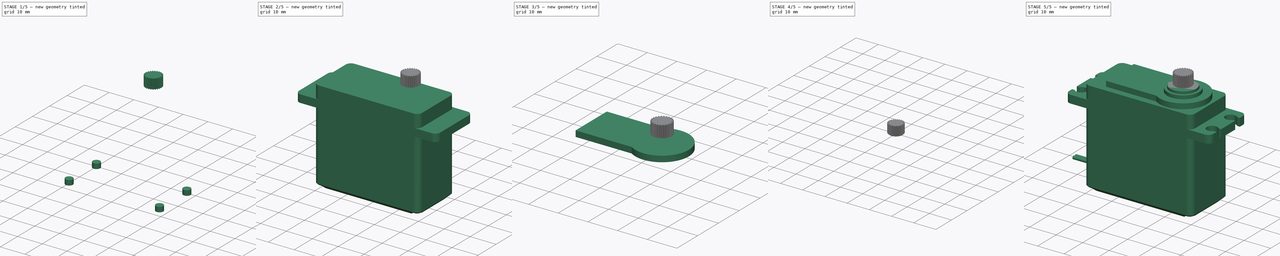
[diagram: build sequence overview — one tinted view per stage of 5, left to right]
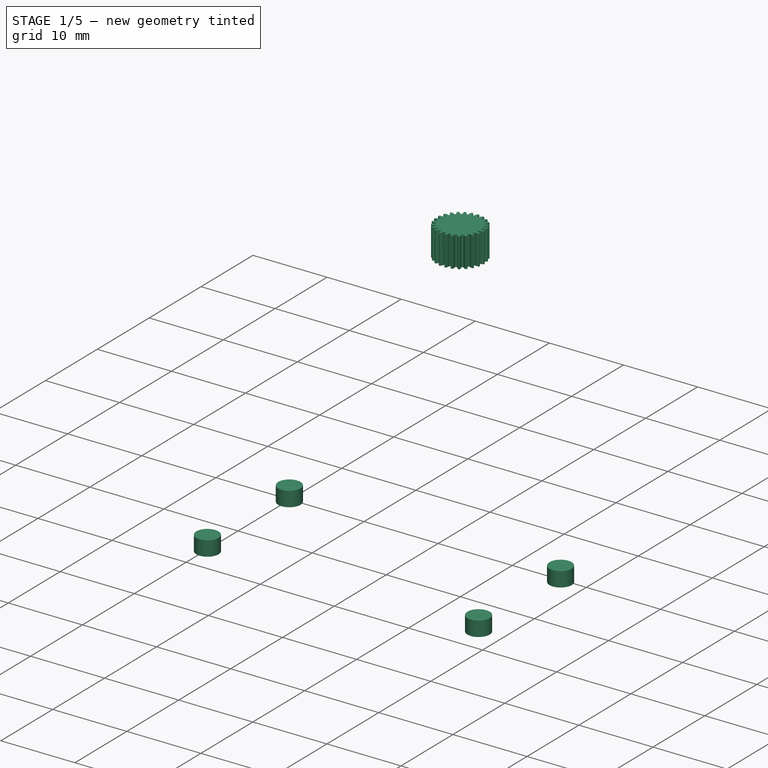
[diagram: stage 1 of 5 — iso view after this stage's code; geometry added in this stage tinted green]
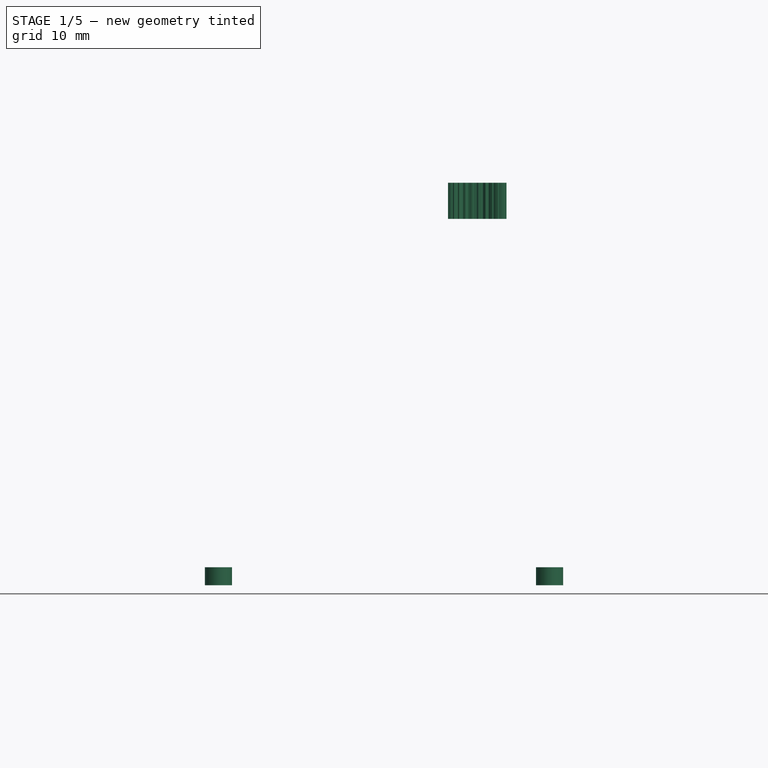
[diagram: stage 1 of 5 — front view after this stage's code; geometry added in this stage tinted green]
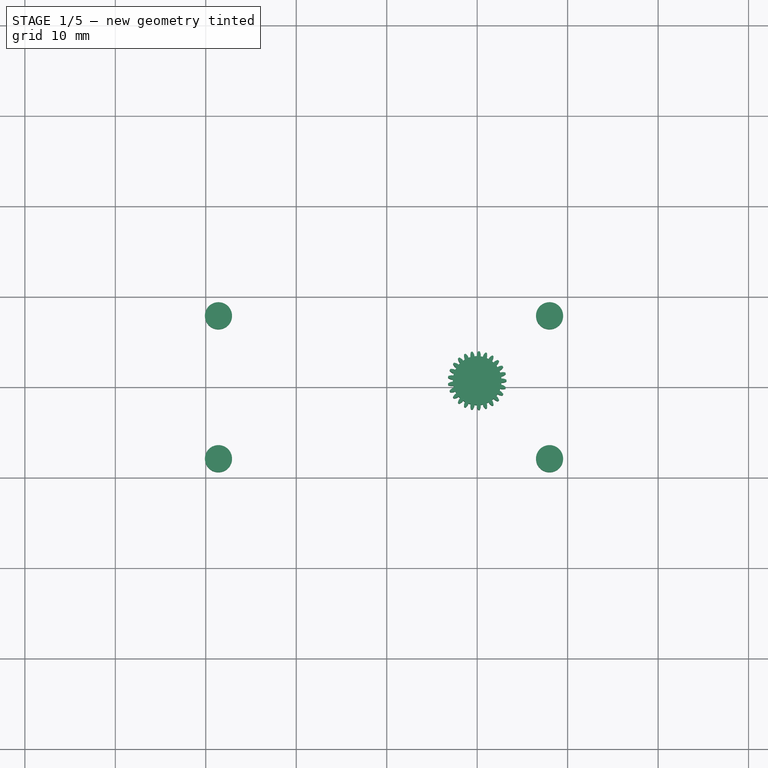
[diagram: stage 1 of 5 — top view after this stage's code; geometry added in this stage tinted green]
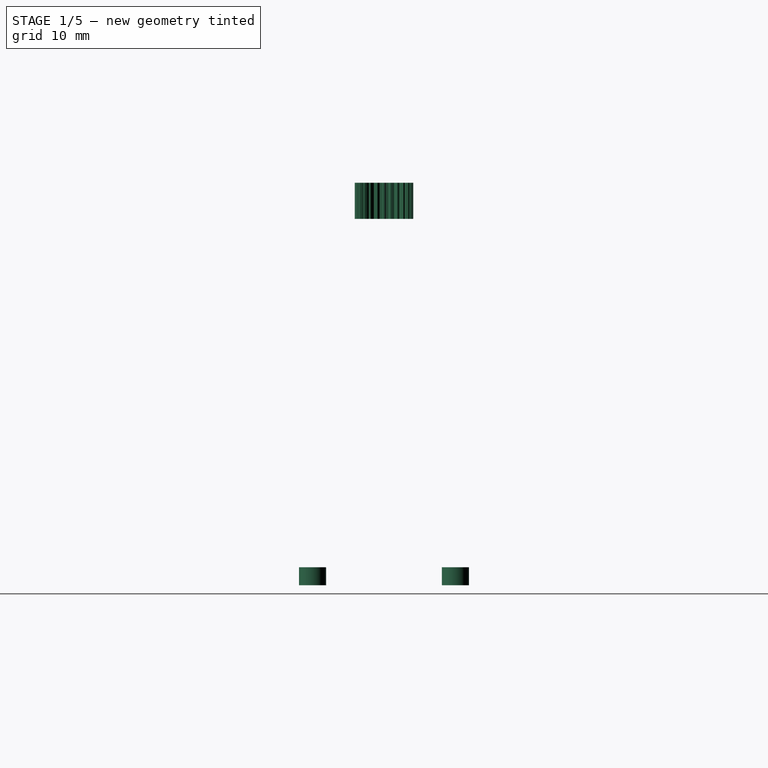
[diagram: stage 1 of 5 — right view after this stage's code; geometry added in this stage tinted green]
FCSTD DOCUMENT  (FreeCAD 0.18R4 (GitTag))
Label: servo
License: All rights reserved
LicenseURL: http://en.wikipedia.org/wiki/All_rights_reserved
objects: Sketcher::SketchObject×13, Part::Extrusion×13, Part::MultiFuse×5, Part::Fillet×3, Part::Cut×3, Part::Chamfer×1, Part::FeaturePython×1, Part::Feature×1
note: 40 computed .brp shape members not serialized (recipe doc carries the construction recipe); baked Part::Feature solids carry a one-line shape summary decoded from their .brp

FEATURE [Sketcher::SketchObject] Sketch
  sketch-geometry (4):
    g0: LineSegment StartX=-30.6 StartY=-9.9 StartZ=0 EndX=10 EndY=-9.9 EndZ=0
    g1: LineSegment StartX=10 StartY=-9.9 StartZ=0 EndX=10 EndY=9.9 EndZ=0
    g2: LineSegment StartX=10 StartY=9.9 StartZ=0 EndX=-30.6 EndY=9.9 EndZ=0
    g3: LineSegment StartX=-30.6 StartY=9.9 StartZ=0 EndX=-30.6 EndY=-9.9 EndZ=0
  constraints (12):
    c: Coincident(g0,g1)
    c: Coincident(g1,g2)
    c: Coincident(g2,g3)
    c: Coincident(g3,g0)
    c: Horizontal(g0)
    c: Horizontal(g2)
    c: Vertical(g1)
    c: Vertical(g3)
    c: DistanceX(g2,g2) = 40.6
    c: DistanceX(g-1,g1) = 10
    c: DistanceY(g1,g1) = 19.8
    c: DistanceY(g-1,g1) = 9.9
FEATURE [Part::Extrusion] Extrude
  Base = -> Sketch
  Dir = (0,0,1)
  DirMode = 2
  FaceMakerClass = Part::FaceMakerBullseye
  LengthFwd = 36
  LengthRev = 0
  Solid = true
  Symmetric = false
FEATURE [Part::Fillet] Fillet
  Base = -> Extrude
  Edges = 4 edges r=2: [Edge1,Edge2,Edge5,Edge8]
FEATURE [Part::Chamfer] Chamfer
  Base = -> Fillet
  Edges = 8 edges r=1.5: [Edge1,Edge5,Edge6,Edge7,Edge8,Edge9,Edge10,Edge11]
FEATURE [Sketcher::SketchObject] Sketch001
  ExternalGeometry = -> [Chamfer]
  MapMode = 5
  Placement = pos=(0,0,0) rot=(1,0,0;3.14159rad)
  Support = -> [Chamfer]
  sketch-geometry (4):
    g0: Circle CenterX=-28.6 CenterY=7.9 CenterZ=0 NormalX=0 NormalY=0 NormalZ=1 AngleXU=0 Radius=1.5
    g1: Circle CenterX=8 CenterY=7.9 CenterZ=0 NormalX=0 NormalY=0 NormalZ=1 AngleXU=0 Radius=1.5
    g2: Circle CenterX=-28.6 CenterY=-7.9 CenterZ=0 NormalX=0 NormalY=0 NormalZ=1 AngleXU=0 Radius=1.5
    g3: Circle CenterX=8 CenterY=-7.9 CenterZ=0 NormalX=0 NormalY=0 NormalZ=1 AngleXU=0 Radius=1.5
  constraints (8):
    c: Coincident(g0,g-3)
    c: Coincident(g-6,g2)
    c: Coincident(g-4,g1)
    c: Coincident(g3,g-5)
    c: Radius(g0) = 1.5
    c: Radius(g2) = 1.5
    c: Radius(g1) = 1.5
    c: Radius(g3) = 1.5
FEATURE [Part::Extrusion] Extrude001
  Base = -> Sketch001
  Dir = (0,0,-1)
  DirMode = 2
  FaceMakerClass = Part::FaceMakerBullseye
  LengthFwd = 2
  LengthRev = 0
  Reversed = true
  Solid = true
  Symmetric = false
FEATURE [Part::FeaturePython] InvoluteGear  # WARN: FeaturePython — macro-defined, semantics opaque (R4)
  Placement = pos=(0,0,40.5) rot=(0,0,1;0rad)
  backlash = 0
  beta = 0
  clearance = 0.25
  double_helix = false
  dw = 6
  head = 0
  height = 4
  module = 0.24
  numpoints = 6
  pressure_angle = 20
  properties_from_tool = true
  reversed_backlash = false
  shift = 0
  simple = false
  teeth = 25
  undercut = false
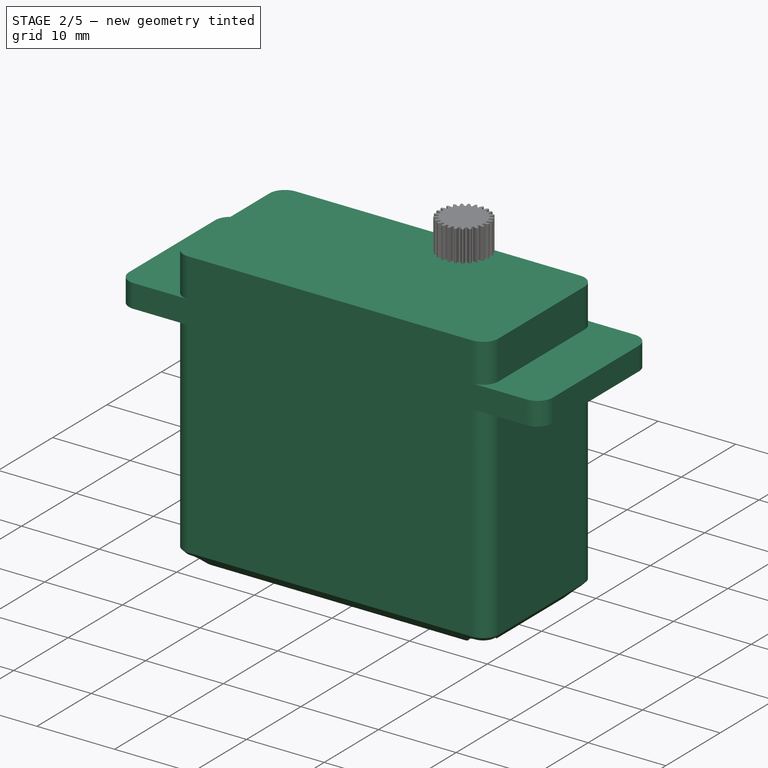
[diagram: stage 2 of 5 — iso view after this stage's code; geometry added in this stage tinted green]
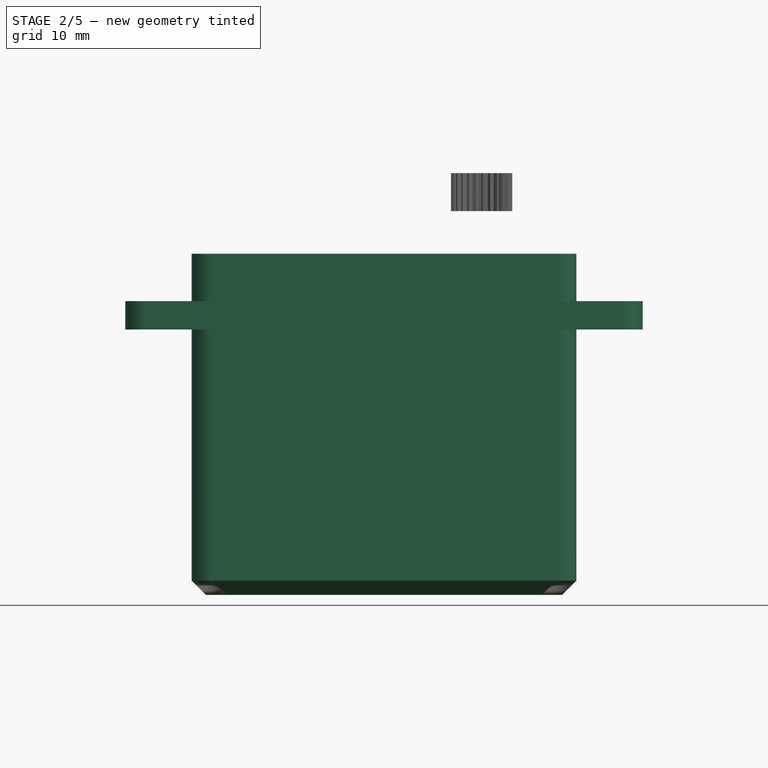
[diagram: stage 2 of 5 — front view after this stage's code; geometry added in this stage tinted green]
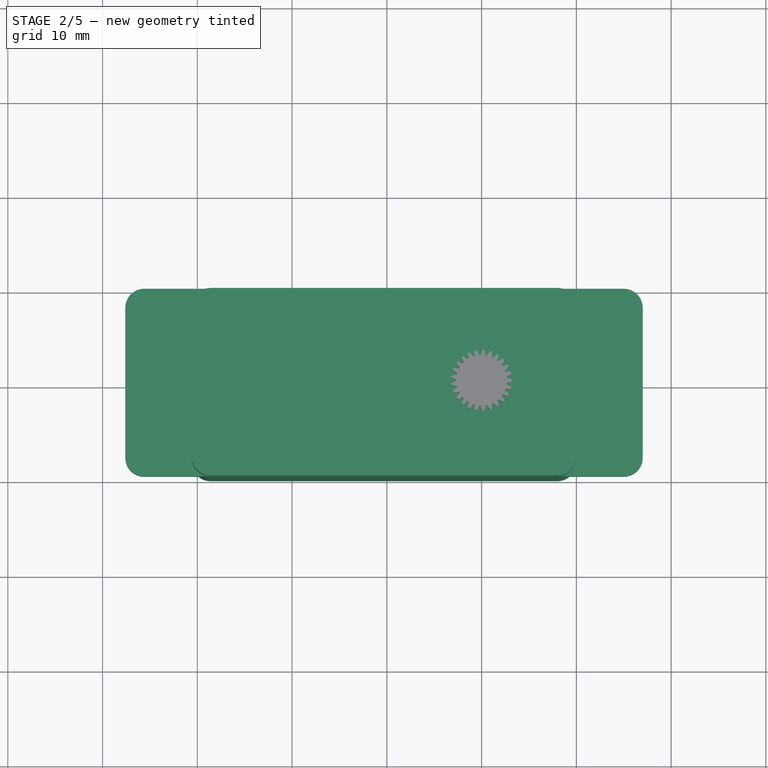
[diagram: stage 2 of 5 — top view after this stage's code; geometry added in this stage tinted green]
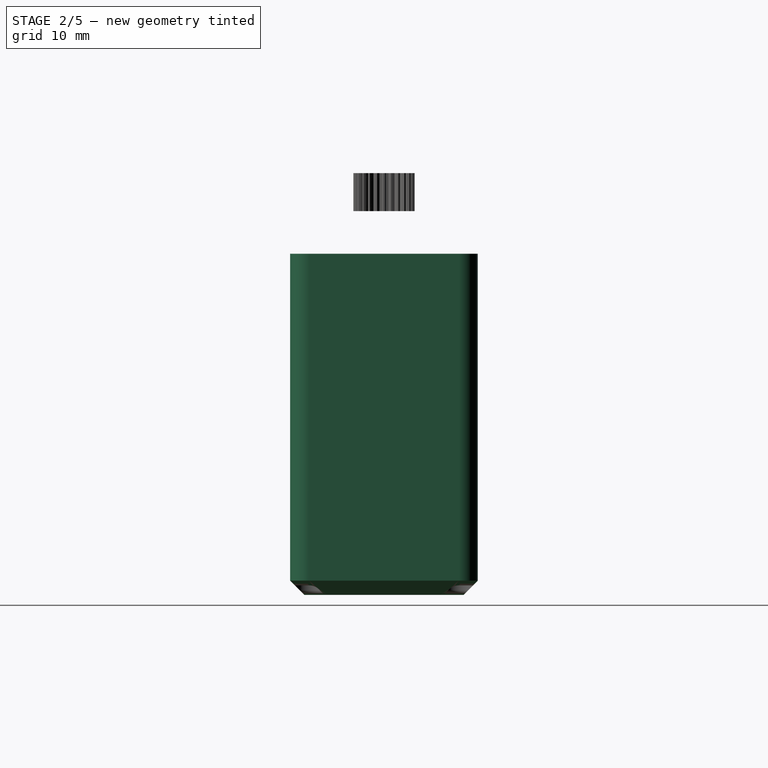
[diagram: stage 2 of 5 — right view after this stage's code; geometry added in this stage tinted green]
FEATURE [Part::Cut] Cut
  Base = -> Chamfer
  Tool = -> Extrude001
FEATURE [Part::Fillet] Fillet001
  Base = -> Cut
  Edges = 4 edges r=0.5: [Edge27,Edge31,Edge34,Edge36]
FEATURE [Sketcher::SketchObject] Sketch002
  ExternalGeometry = -> [Fillet001]
  MapMode = 5
  Placement = pos=(0,-9.9,0) rot=(1,0,0;1.5708rad)
  Support = -> [Fillet001]
  sketch-geometry (4):
    g0: LineSegment StartX=-37.6 StartY=28 StartZ=0 EndX=17 EndY=28 EndZ=0
    g1: LineSegment StartX=17 StartY=28 StartZ=0 EndX=17 EndY=31 EndZ=0
    g2: LineSegment StartX=17 StartY=31 StartZ=0 EndX=-37.6 EndY=31 EndZ=0
    g3: LineSegment StartX=-37.6 StartY=31 StartZ=0 EndX=-37.6 EndY=28 EndZ=0
  constraints (12):
    c: Coincident(g0,g1)
    c: Coincident(g1,g2)
    c: Coincident(g2,g3)
    c: Coincident(g3,g0)
    c: Horizontal(g0)
    c: Horizontal(g2)
    c: Vertical(g1)
    c: Vertical(g3)
    c: DistanceX(g-1,g0) = 17
    c: DistanceX(g0,g-1) = 37.6
    c: DistanceY(g1,g1) = 3
    c: DistanceY(g1,g-3) = 5
FEATURE [Part::Extrusion] Extrude002
  Base = -> Sketch002
  Dir = (0,-1,2e-16)
  DirMode = 2
  FaceMakerClass = Part::FaceMakerBullseye
  LengthFwd = 19.8
  LengthRev = 0
  Reversed = true
  Solid = true
  Symmetric = false
FEATURE [Part::MultiFuse] Fusion
  Shapes = -> [Fillet001,Extrude002]
FEATURE [Part::Fillet] Fillet002
  Base = -> Fusion
  Edges = 4 edges r=2: [Edge9,Edge19,Edge46,Edge95]
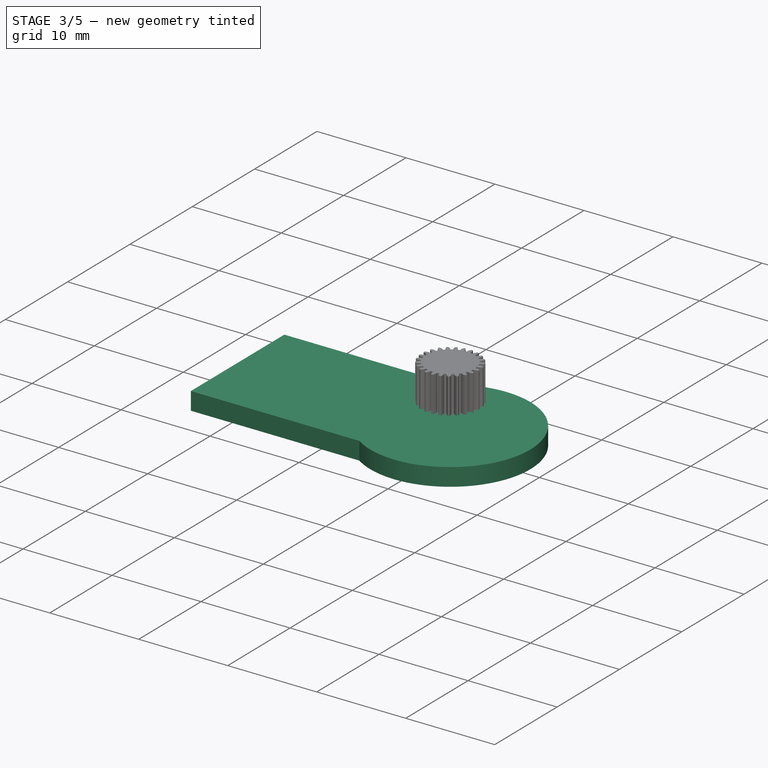
[diagram: stage 3 of 5 — iso view after this stage's code; geometry added in this stage tinted green]
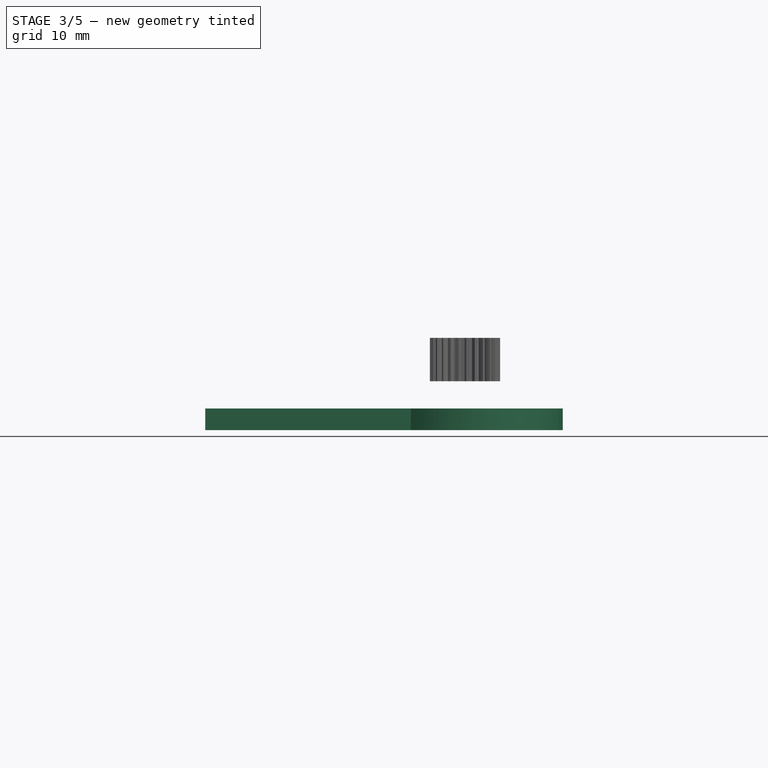
[diagram: stage 3 of 5 — front view after this stage's code; geometry added in this stage tinted green]
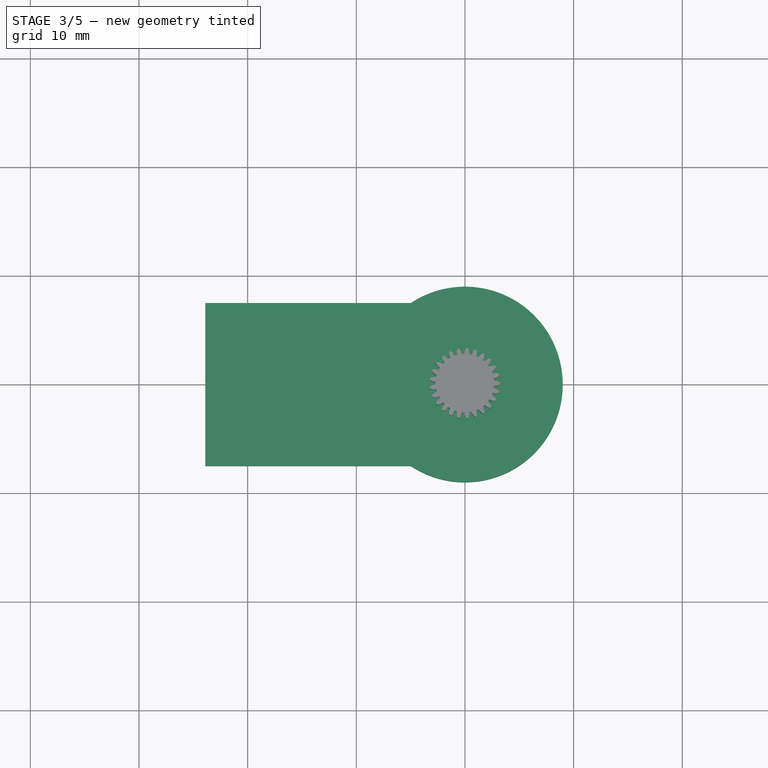
[diagram: stage 3 of 5 — top view after this stage's code; geometry added in this stage tinted green]
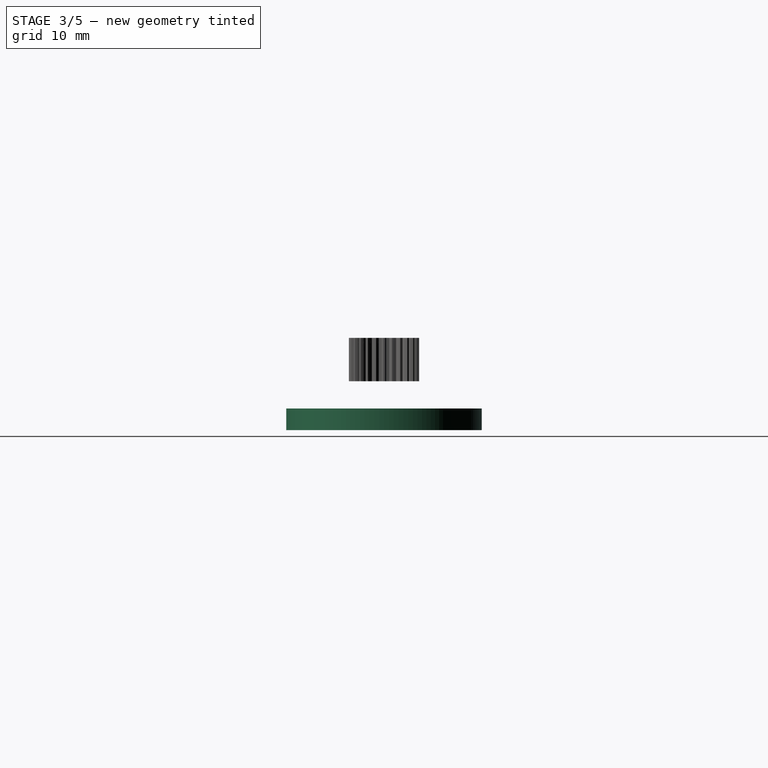
[diagram: stage 3 of 5 — right view after this stage's code; geometry added in this stage tinted green]
FEATURE [Sketcher::SketchObject] Sketch003
  ExternalGeometry = -> [Fillet002]
  MapMode = 5
  Placement = pos=(0,6.8e-15,31) rot=(0,0,1;0rad)
  Support = -> [Fillet002]
  sketch-geometry (8):
    g0: Circle CenterX=-35 CenterY=5 CenterZ=0 NormalX=0 NormalY=0 NormalZ=1 AngleXU=0 Radius=2
    g1: Circle CenterX=-35 CenterY=-5 CenterZ=0 NormalX=0 NormalY=0 NormalZ=1 AngleXU=0 Radius=2
    g2: Circle CenterX=14.4 CenterY=5 CenterZ=0 NormalX=0 NormalY=0 NormalZ=1 AngleXU=0 Radius=2
    g3: Circle CenterX=14.4 CenterY=-5 CenterZ=0 NormalX=0 NormalY=0 NormalZ=1 AngleXU=0 Radius=2
    g4: LineSegment [constr] StartX=-35 StartY=5 StartZ=0 EndX=14.4 EndY=5 EndZ=0
    g5: LineSegment [constr] StartX=14.4 StartY=5 StartZ=0 EndX=14.4 EndY=-5 EndZ=0
    g6: LineSegment [constr] StartX=14.4 StartY=-5 StartZ=0 EndX=-35 EndY=-5 EndZ=0
    g7: LineSegment [constr] StartX=-35 StartY=-5 StartZ=0 EndX=-35 EndY=5 EndZ=0
  constraints (20):
    c: Coincident(g4,g5)
    c: Coincident(g5,g6)
    c: Coincident(g6,g7)
    c: Coincident(g7,g4)
    c: Horizontal(g4)
    c: Horizontal(g6)
    c: Vertical(g5)
    c: Vertical(g7)
    c: DistanceX(g4,g4) = 49.4
    c: DistanceX(g4,g-4) = 2.6
    c: DistanceY(g5,g5) = 10
    c: DistanceY(g5,g-1) = 5
    c: Coincident(g0,g4)
    c: Coincident(g1,g6)
    c: Coincident(g3,g5)
    c: Coincident(g4,g2)
    c: Radius(g0) = 2
    c: Radius(g1) = 2
    c: Radius(g3) = 2
    c: Radius(g2) = 2
FEATURE [Part::Extrusion] Extrude003
  Base = -> Sketch003
  Dir = (0,2e-16,1)
  DirMode = 2
  FaceMakerClass = Part::FaceMakerBullseye
  LengthFwd = 3
  LengthRev = 0
  Reversed = true
  Solid = true
  Symmetric = false
FEATURE [Part::Cut] Cut001
  Base = -> Fillet002
  Tool = -> Extrude003
FEATURE [Sketcher::SketchObject] Sketch004
  ExternalGeometry = -> [Cut001]
  MapMode = 5
  Placement = pos=(0,6.8e-15,31) rot=(0,0,1;0rad)
  Support = -> [Cut001]
  sketch-geometry (16):
    g0: LineSegment StartX=-40 StartY=3.75 StartZ=0 EndX=-35 EndY=3.75 EndZ=0
    g1: LineSegment StartX=-35 StartY=3.75 StartZ=0 EndX=-35 EndY=6.25 EndZ=0
    g2: LineSegment StartX=-35 StartY=6.25 StartZ=0 EndX=-40 EndY=6.25 EndZ=0
    g3: LineSegment StartX=-40 StartY=6.25 StartZ=0 EndX=-40 EndY=3.75 EndZ=0
    g4: LineSegment StartX=14.4 StartY=6.25 StartZ=0 EndX=19.4 EndY=6.25 EndZ=0
    g5: LineSegment StartX=19.4 StartY=6.25 StartZ=0 EndX=19.4 EndY=3.75 EndZ=0
    g6: LineSegment StartX=19.4 StartY=3.75 StartZ=0 EndX=14.4 EndY=3.75 EndZ=0
    g7: LineSegment StartX=14.4 StartY=3.75 StartZ=0 EndX=14.4 EndY=6.25 EndZ=0
    g8: LineSegment StartX=14.4 StartY=-3.75 StartZ=0 EndX=19.4 EndY=-3.75 EndZ=0
    g9: LineSegment StartX=19.4 StartY=-3.75 StartZ=0 EndX=19.4 EndY=-6.25 EndZ=0
    g10: LineSegment StartX=19.4 StartY=-6.25 StartZ=0 EndX=14.4 EndY=-6.25 EndZ=0
    g11: LineSegment StartX=14.4 StartY=-6.25 StartZ=0 EndX=14.4 EndY=-3.75 EndZ=0
    g12: LineSegment StartX=-40 StartY=-3.75 StartZ=0 EndX=-35 EndY=-3.75 EndZ=0
    g13: LineSegment StartX=-35 StartY=-3.75 StartZ=0 EndX=-35 EndY=-6.25 EndZ=0
    g14: LineSegment StartX=-35 StartY=-6.25 StartZ=0 EndX=-40 EndY=-6.25 EndZ=0
    g15: LineSegment StartX=-40 StartY=-6.25 StartZ=0 EndX=-40 EndY=-3.75 EndZ=0
  constraints (48):
    c: Coincident(g0,g1)
    c: Coincident(g1,g2)
    c: Coincident(g2,g3)
    c: Coincident(g3,g0)
    c: Horizontal(g0)
    c: Horizontal(g2)
    c: Vertical(g1)
    c: Vertical(g3)
    c: Coincident(g4,g5)
    c: Coincident(g5,g6)
    c: Coincident(g6,g7)
    c: Coincident(g7,g4)
    c: Horizontal(g4)
    c: Horizontal(g6)
    c: Vertical(g5)
    c: Vertical(g7)
    c: Coincident(g8,g9)
    c: Coincident(g9,g10)
    c: Coincident(g10,g11)
    c: Coincident(g11,g8)
    c: Horizontal(g8)
    c: Horizontal(g10)
    c: Vertical(g9)
    c: Vertical(g11)
    c: Coincident(g12,g13)
    c: Coincident(g13,g14)
    c: Coincident(g14,g15)
    c: Coincident(g15,g12)
    c: Horizontal(g12)
    c: Horizontal(g14)
    c: Vertical(g13)
    c: Vertical(g15)
    c: DistanceY(g1,g1) = 2.5
    c: DistanceY(g7,g7) = 2.5
    c: DistanceY(g11,g11) = 2.5
    c: DistanceY(g13,g13) = 2.5
    c: DistanceY(g-3,g1) = 1.25
    c: DistanceY(g13,g-4) = 1.25
    c: DistanceY(g10,g-6) = 1.25
    c: DistanceY(g-5,g4) = 1.25
    c: DistanceX(g1,g-3) = 0
    c: DistanceX(g-4,g12) = 0
    c: DistanceX(g-6,g8) = 0
    c: DistanceX(g6,g-5) = 0
    c: DistanceX(g2,g2) = 5
    c: DistanceX(g12,g12) = 5
    c: DistanceX(g4,g4) = 5
    c: DistanceX(g8,g8) = 5
FEATURE [Part::Extrusion] Extrude004
  Base = -> Sketch004
  Dir = (0,2e-16,1)
  DirMode = 2
  FaceMakerClass = Part::FaceMakerBullseye
  LengthFwd = 3
  LengthRev = 0
  Reversed = true
  Solid = true
  Symmetric = false
FEATURE [Part::Cut] Cut002
  Base = -> Cut001
  Tool = -> Extrude004
FEATURE [Sketcher::SketchObject] Sketch005
  MapMode = 5
  Placement = pos=(0,0,36) rot=(0,0,1;0rad)
  Support = -> [Cut002]
  sketch-geometry (1):
    g0: Circle CenterX=0 CenterY=0 CenterZ=0 NormalX=0 NormalY=0 NormalZ=1 AngleXU=0 Radius=9
  constraints (2):
    c: Coincident(g-1,g0)
    c: Radius(g0) = 9
FEATURE [Part::Extrusion] Extrude005
  Base = -> Sketch005
  Dir = (0,0,1)
  DirMode = 2
  FaceMakerClass = Part::FaceMakerBullseye
  LengthFwd = 2
  LengthRev = 0
  Solid = true
  Symmetric = false
FEATURE [Sketcher::SketchObject] Sketch006
  ExternalGeometry = -> [Cut002]
  MapMode = 5
  Placement = pos=(0,0,36) rot=(0,0,1;0rad)
  Support = -> [Cut002]
  sketch-geometry (4):
    g0: LineSegment StartX=-23.9 StartY=-7.5 StartZ=0 EndX=0 EndY=-7.5 EndZ=0
    g1: LineSegment StartX=0 StartY=-7.5 StartZ=0 EndX=0 EndY=7.5 EndZ=0
    g2: LineSegment StartX=0 StartY=7.5 StartZ=0 EndX=-23.9 EndY=7.5 EndZ=0
    g3: LineSegment StartX=-23.9 StartY=7.5 StartZ=0 EndX=-23.9 EndY=-7.5 EndZ=0
  constraints (12):
    c: Coincident(g0,g1)
    c: Coincident(g1,g2)
    c: Coincident(g2,g3)
    c: Coincident(g3,g0)
    c: Horizontal(g0)
    c: Horizontal(g2)
    c: Vertical(g1)
    c: Vertical(g3)
    c: DistanceY(g3,g3) = 15
    c: DistanceY(g-1,g1) = 7.5
    c: DistanceX(g-1,g1) = 0
    c: DistanceX(g-3,g2) = 6.7
FEATURE [Part::Extrusion] Extrude006
  Base = -> Sketch006
  Dir = (0,0,1)
  DirMode = 2
  FaceMakerClass = Part::FaceMakerBullseye
  LengthFwd = 2
  LengthRev = 0
  Solid = true
  Symmetric = false
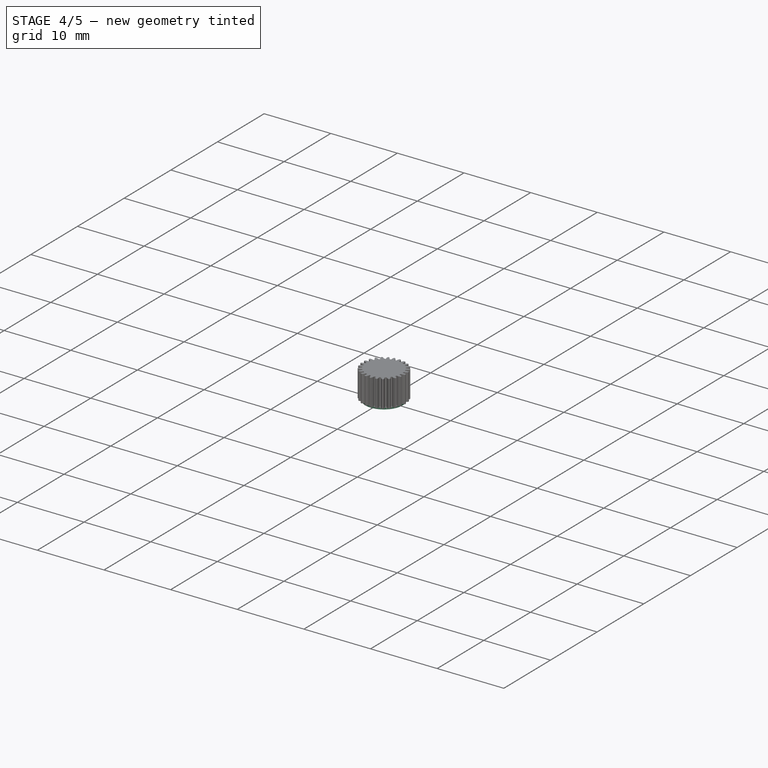
[diagram: stage 4 of 5 — iso view after this stage's code; geometry added in this stage tinted green]
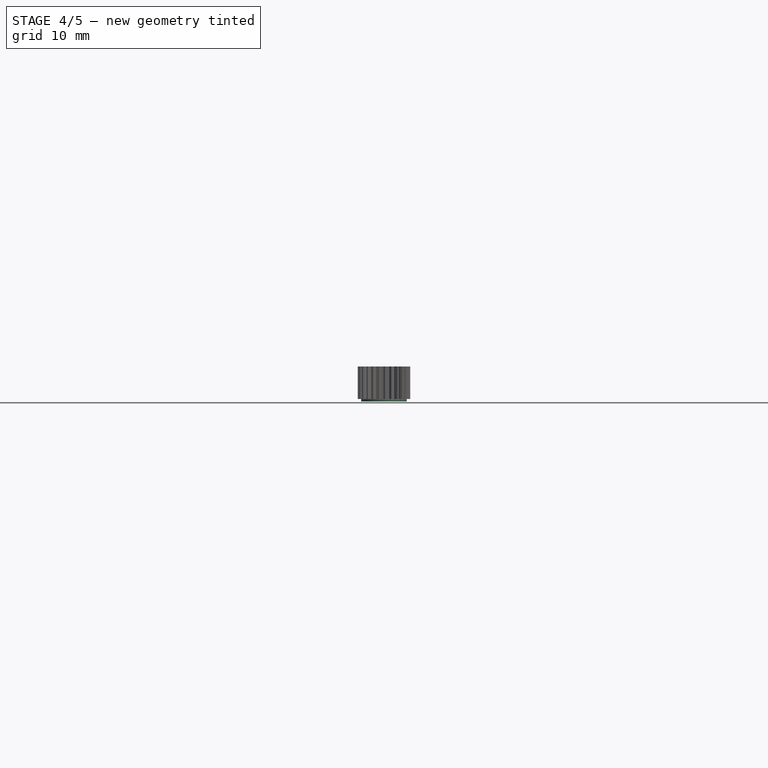
[diagram: stage 4 of 5 — front view after this stage's code; geometry added in this stage tinted green]
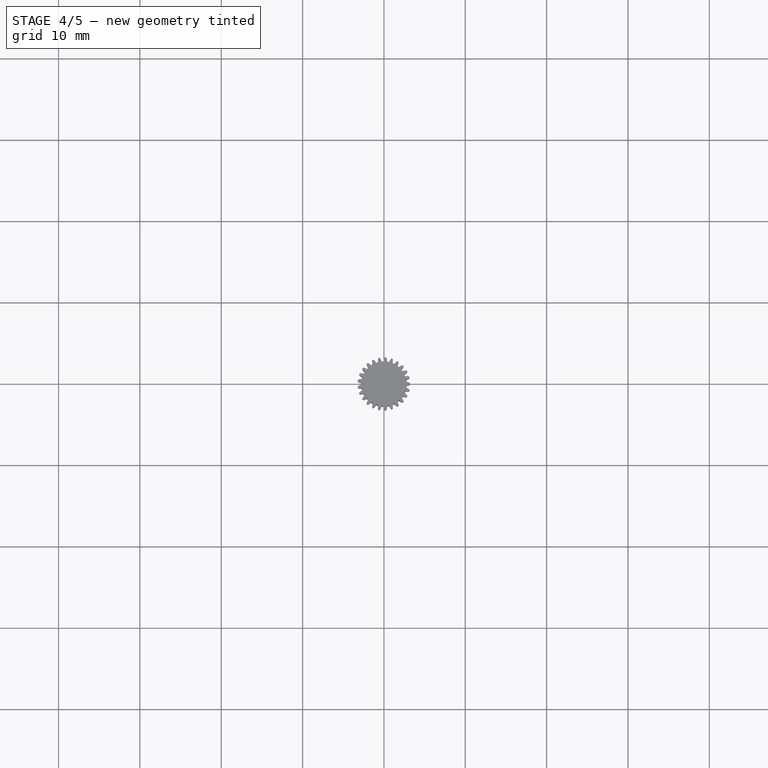
[diagram: stage 4 of 5 — top view after this stage's code; geometry added in this stage tinted green]
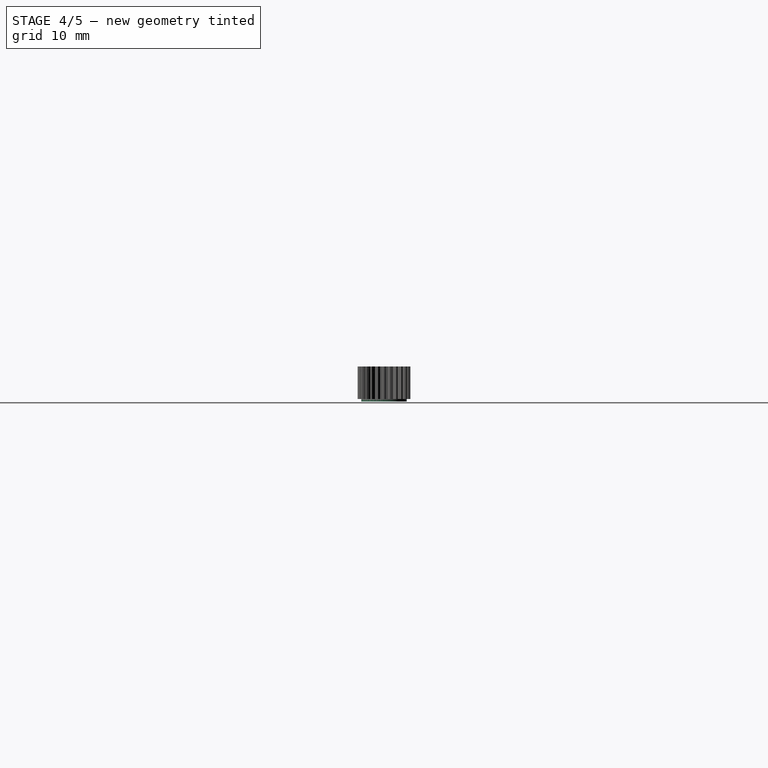
[diagram: stage 4 of 5 — right view after this stage's code; geometry added in this stage tinted green]
FEATURE [Part::MultiFuse] Fusion001
  Shapes = -> [Extrude006,Extrude005]
FEATURE [Part::MultiFuse] Fusion002
  Shapes = -> [Fusion001,Cut002]
FEATURE [Sketcher::SketchObject] Sketch007
  MapMode = 5
  Placement = pos=(0,0,38) rot=(0,0,1;0rad)
  Support = -> [Fusion002]
  sketch-geometry (1):
    g0: Circle CenterX=0 CenterY=0 CenterZ=0 NormalX=0 NormalY=0 NormalZ=1 AngleXU=0 Radius=6
  constraints (2):
    c: Coincident(g0,g-1)
    c: Radius(g0) = 6
FEATURE [Part::Extrusion] Extrude007
  Base = -> Sketch007
  Dir = (0,0,1)
  DirMode = 2
  FaceMakerClass = Part::FaceMakerBullseye
  LengthFwd = 1.3
  LengthRev = 0
  Solid = true
  Symmetric = false
FEATURE [Sketcher::SketchObject] Sketch008
  MapMode = 5
  Placement = pos=(0,0,39.3) rot=(0,0,1;0rad)
  Support = -> [Extrude007]
  sketch-geometry (1):
    g0: Circle CenterX=0 CenterY=0 CenterZ=0 NormalX=0 NormalY=0 NormalZ=1 AngleXU=0 Radius=5
  constraints (2):
    c: Coincident(g0,g-1)
    c: Radius(g0) = 5
FEATURE [Part::Extrusion] Extrude008
  Base = -> Sketch008
  Dir = (0,0,1)
  DirMode = 2
  FaceMakerClass = Part::FaceMakerBullseye
  LengthFwd = 0.9
  LengthRev = 0
  Solid = true
  Symmetric = false
FEATURE [Sketcher::SketchObject] Sketch009
  MapMode = 5
  Placement = pos=(0,0,40.2) rot=(0,0,1;0rad)
  Support = -> [Extrude008]
  sketch-geometry (1):
    g0: Circle CenterX=0 CenterY=0 CenterZ=0 NormalX=0 NormalY=0 NormalZ=1 AngleXU=0 Radius=2.8
  constraints (2):
    c: Coincident(g0,g-1)
    c: Radius(g0) = 2.8
FEATURE [Part::Extrusion] Extrude009
  Base = -> Sketch009
  Dir = (0,0,1)
  DirMode = 2
  FaceMakerClass = Part::FaceMakerBullseye
  LengthFwd = 0.3
  LengthRev = 0
  Solid = true
  Symmetric = false
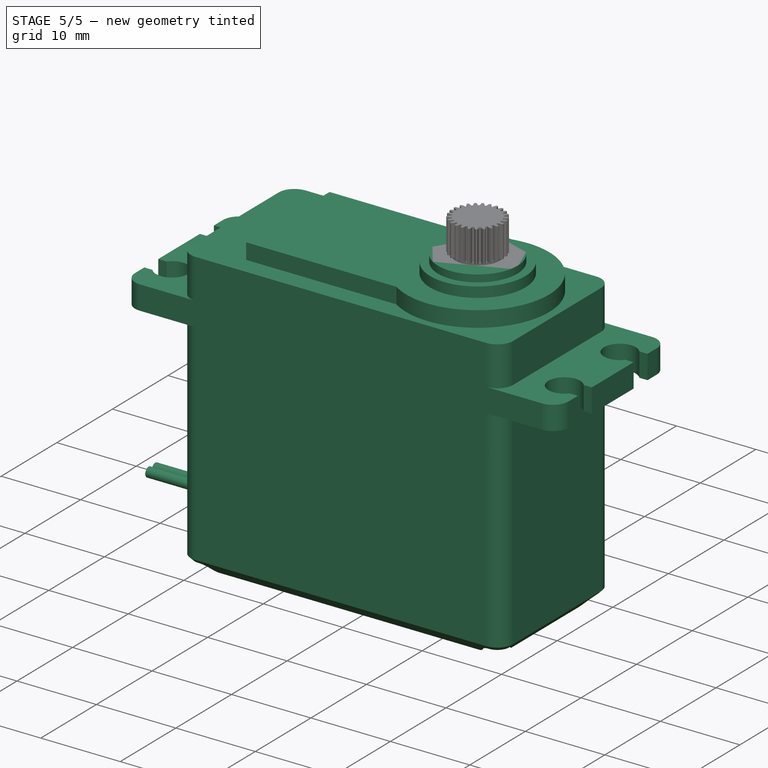
[diagram: stage 5 of 5 — iso view after this stage's code; geometry added in this stage tinted green]
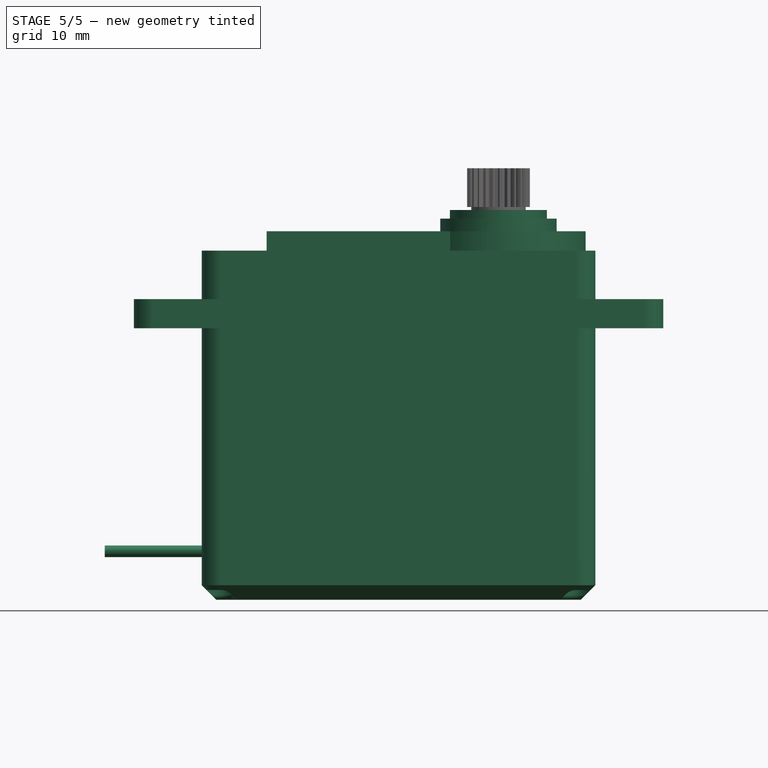
[diagram: stage 5 of 5 — front view after this stage's code; geometry added in this stage tinted green]
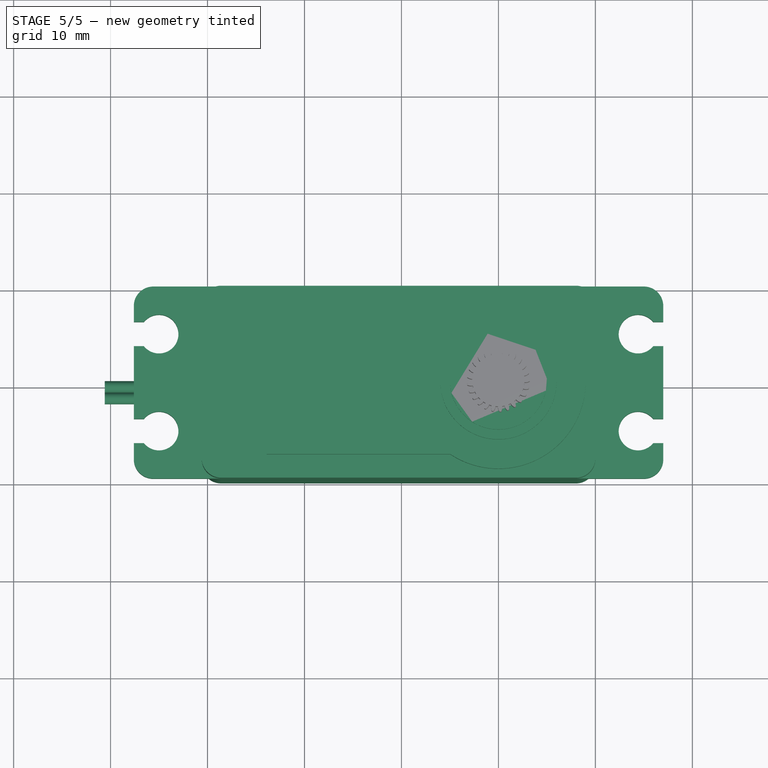
[diagram: stage 5 of 5 — top view after this stage's code; geometry added in this stage tinted green]
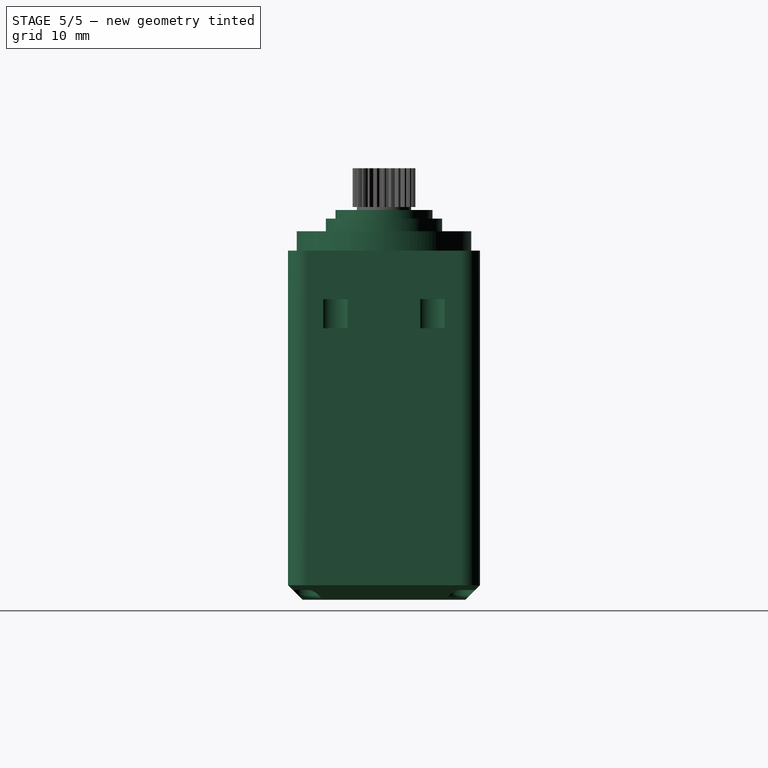
[diagram: stage 5 of 5 — right view after this stage's code; geometry added in this stage tinted green]
FEATURE [Sketcher::SketchObject] Sketch010
  MapMode = 5
  Placement = pos=(-30.6,0,0) rot=(0.57735,-0.57735,-0.57735;2.0944rad)
  sketch-geometry (1):
    g0: Circle CenterX=-1.2 CenterY=5 CenterZ=0 NormalX=0 NormalY=0 NormalZ=1 AngleXU=0 Radius=0.6
  constraints (3):
    c: Radius(g0) = 0.6
    c: DistanceX(g0,g-1) = 1.2
    c: DistanceY(g-1,g0) = 5
FEATURE [Part::Extrusion] Extrude010
  Base = -> Sketch010
  Dir = (-1,0,0)
  DirMode = 2
  FaceMakerClass = Part::FaceMakerBullseye
  LengthFwd = 10
  LengthRev = 0
  Solid = true
  Symmetric = false
FEATURE [Sketcher::SketchObject] Sketch011
  ExternalGeometry = -> [Extrude010]
  MapMode = 5
  Placement = pos=(-30.6,0,0) rot=(0.57735,-0.57735,-0.57735;2.0944rad)
  sketch-geometry (1):
    g0: Circle CenterX=0 CenterY=5 CenterZ=0 NormalX=0 NormalY=0 NormalZ=1 AngleXU=0 Radius=0.6
  constraints (3):
    c: PointOnObject(g0,g-2)
    c: Radius(g0) = 0.6
    c: DistanceY(g-3,g0) = 0
FEATURE [Part::Extrusion] Extrude011
  Base = -> Sketch011
  Dir = (-1,0,0)
  DirMode = 2
  FaceMakerClass = Part::FaceMakerBullseye
  LengthFwd = 10
  LengthRev = 0
  Solid = true
  Symmetric = false
FEATURE [Sketcher::SketchObject] Sketch012
  MapMode = 5
  Placement = pos=(-30.6,0,0) rot=(0.57735,-0.57735,-0.57735;2.0944rad)
  sketch-geometry (1):
    g0: Circle CenterX=1.2 CenterY=5 CenterZ=0 NormalX=0 NormalY=0 NormalZ=1 AngleXU=0 Radius=0.6
  constraints (3):
    c: DistanceY(g-1,g0) = 5
    c: Radius(g0) = 0.6
    c: DistanceX(g-1,g0) = 1.2
FEATURE [Part::Extrusion] Extrude012
  Base = -> Sketch012
  Dir = (-1,0,0)
  DirMode = 2
  FaceMakerClass = Part::FaceMakerBullseye
  LengthFwd = 10
  LengthRev = 0
  Solid = true
  Symmetric = false
FEATURE [Part::MultiFuse] Fusion003
  Shapes = -> [Fusion002,Extrude007,Extrude008]
FEATURE [Part::Feature] Fusion003001  label="Fusion004"
  shape: bbox 54.6 x 19.8 x 40.2 mm, 73 faces (baked)
FEATURE [Part::MultiFuse] Fusion003002
  Shapes = -> [InvoluteGear,Extrude009]
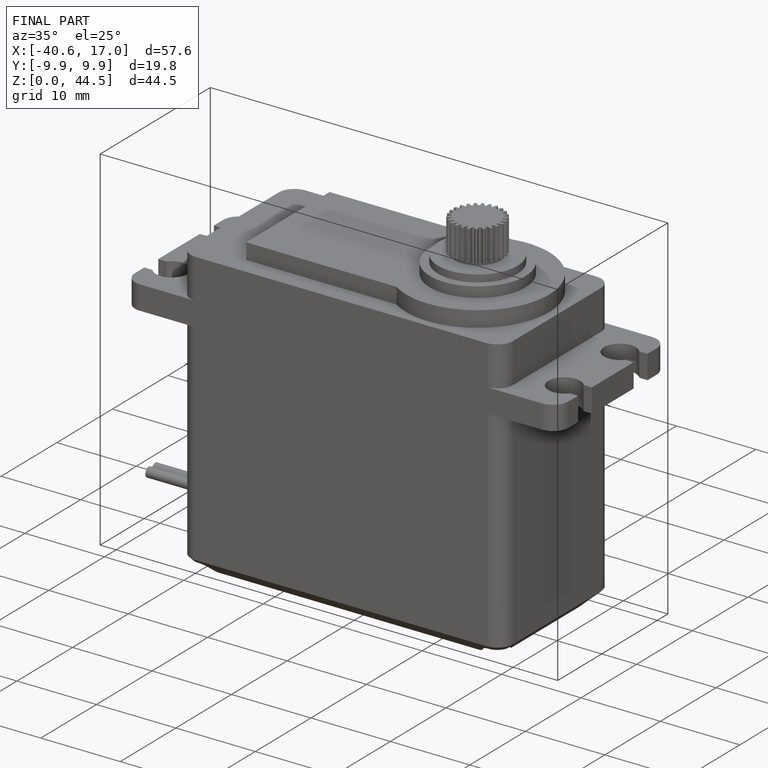
[diagram: finished part — iso view with bounding-box wireframe]
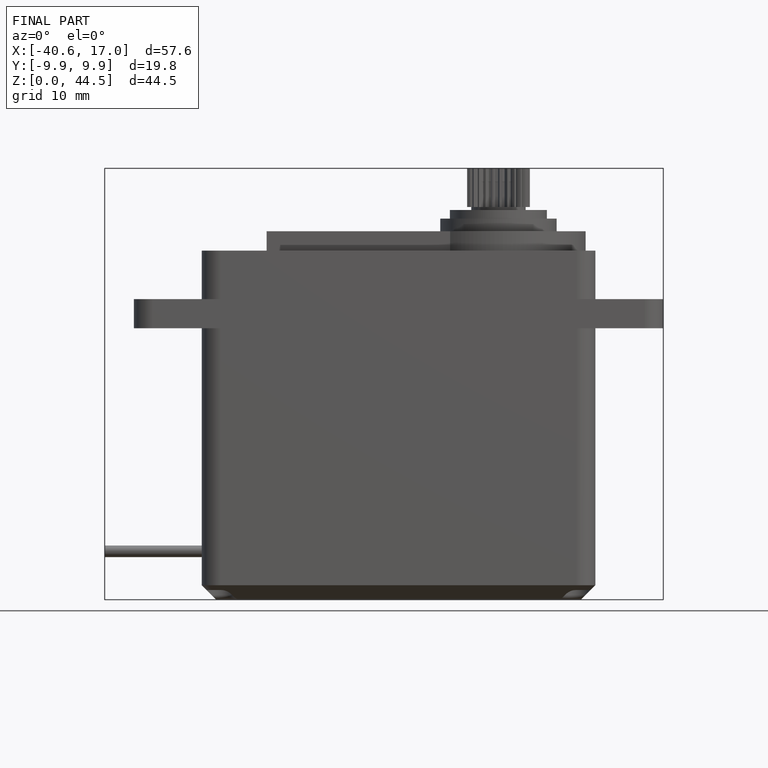
[diagram: finished part — front view with bounding-box wireframe]
